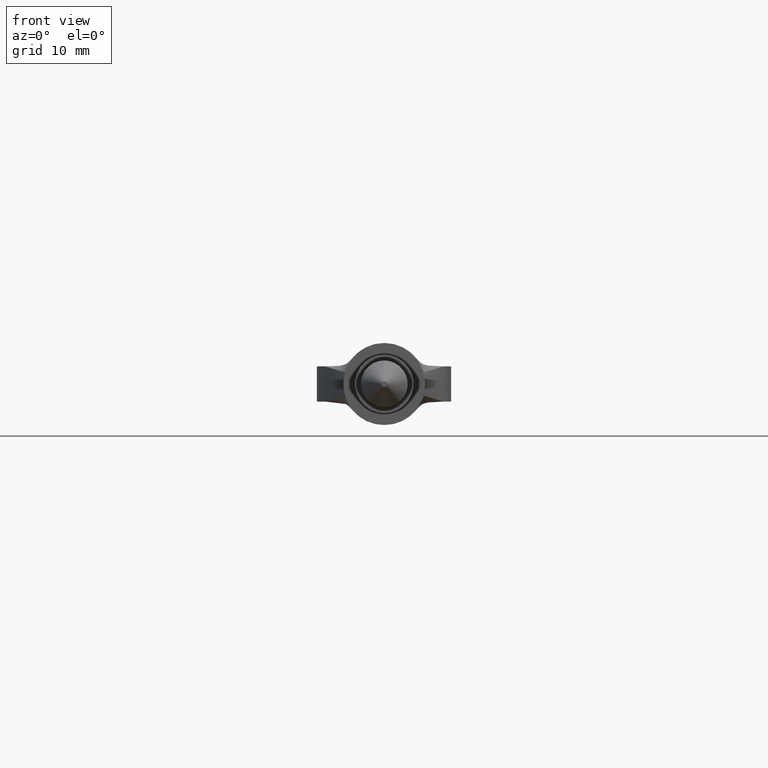
[diagram: clean part render]
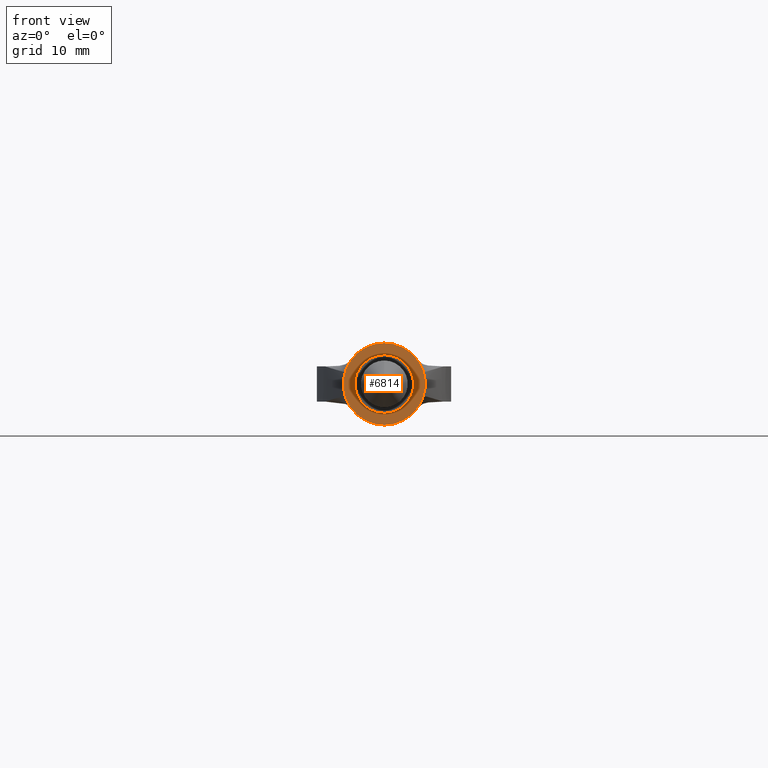
[diagram: same view with one face highlighted and labeled with its STEP entity id]
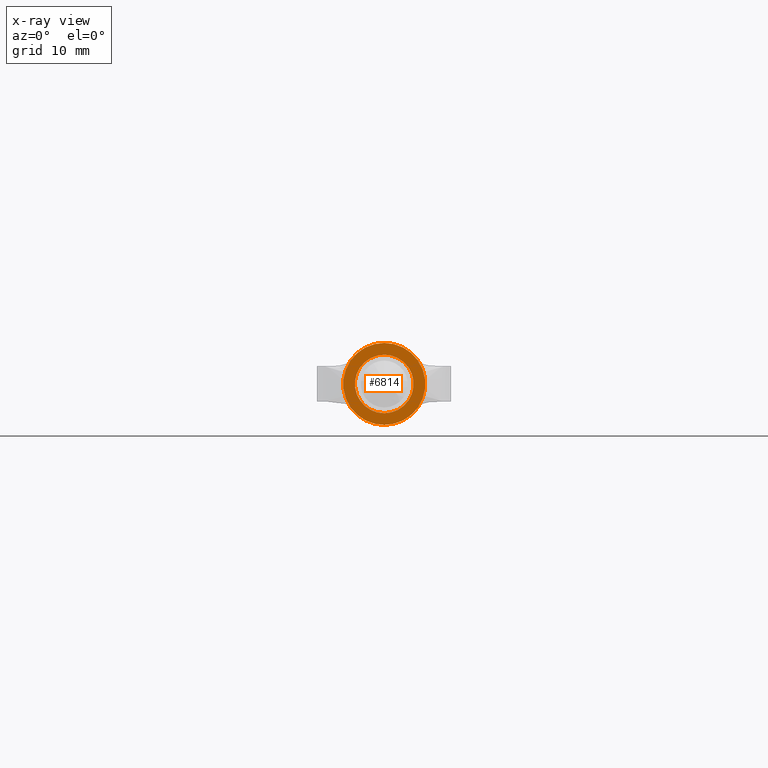
[diagram: x-ray of the same camera — body ghosted, the highlighted face saturated]
A machine part, front view. The second image highlights one B-rep face of the part: STEP entity #6814.
The next image is the same camera in x-ray: the body ghosted, the highlighted face saturated — about 0% of this face is hidden behind the body in this view.
In plain terms, the highlighted planar face has unit normal (0, 1, 0).
Its self-contained STEP definition (entity closure, byte-faithful):
#69 = CARTESIAN_POINT ( 'NONE',  ( 0.0000000000000000000, 39.50000000000000000, 0.0000000000000000000 ) ) ;
#333 = DIRECTION ( 'NONE',  ( 0.0000000000000000000, -0.0000000000000000000, 1.000000000000000000 ) ) ;
#396 = CIRCLE ( 'NONE', #3643, 3.500000000000000000 ) ;
#458 = EDGE_CURVE ( 'NONE', #7407, #5118, #3915, .T. ) ;
#879 = CARTESIAN_POINT ( 'NONE',  ( 0.0000000000000000000, 39.50000000000000000, 2.500000000000000000 ) ) ;
#1585 = AXIS2_PLACEMENT_3D ( 'NONE', #12111, #9944, #9754 ) ;
#1679 = ORIENTED_EDGE ( 'NONE', *, *, #458, .F. ) ;
#1902 = ORIENTED_EDGE ( 'NONE', *, *, #7504, .T. ) ;
#2883 = AXIS2_PLACEMENT_3D ( 'NONE', #13641, #5818, #333 ) ;
#3643 = AXIS2_PLACEMENT_3D ( 'NONE', #14372, #6648, #9986 ) ;
#3654 = CARTESIAN_POINT ( 'NONE',  ( 3.061616997868383100E-016, 39.50000000000000000, -2.500000000000000000 ) ) ;
#3915 = CIRCLE ( 'NONE', #4226, 3.500000000000000000 ) ;
#4226 = AXIS2_PLACEMENT_3D ( 'NONE', #14201, #7556, #8709 ) ;
#5118 = VERTEX_POINT ( 'NONE', #9779 ) ;
#5818 = DIRECTION ( 'NONE',  ( 0.0000000000000000000, 1.000000000000000000, 0.0000000000000000000 ) ) ;
#6648 = DIRECTION ( 'NONE',  ( 0.0000000000000000000, 1.000000000000000000, 0.0000000000000000000 ) ) ;
#6814 = ADVANCED_FACE ( 'NONE', ( #11900, #7883 ), #13540, .F. ) ;
#6851 = DIRECTION ( 'NONE',  ( 0.0000000000000000000, 1.000000000000000000, 0.0000000000000000000 ) ) ;
#7041 = VERTEX_POINT ( 'NONE', #879 ) ;
#7202 = ORIENTED_EDGE ( 'NONE', *, *, #10521, .F. ) ;
#7407 = VERTEX_POINT ( 'NONE', #10687 ) ;
#7504 = EDGE_CURVE ( 'NONE', #9901, #7041, #10966, .T. ) ;
#7556 = DIRECTION ( 'NONE',  ( 0.0000000000000000000, 1.000000000000000000, 0.0000000000000000000 ) ) ;
#7660 = EDGE_CURVE ( 'NONE', #7041, #9901, #13091, .T. ) ;
#7883 = FACE_OUTER_BOUND ( 'NONE', #13428, .T. ) ;
#8709 = DIRECTION ( 'NONE',  ( 0.0000000000000000000, 0.0000000000000000000, 1.000000000000000000 ) ) ;
#9754 = DIRECTION ( 'NONE',  ( 0.0000000000000000000, 0.0000000000000000000, 1.000000000000000000 ) ) ;
#9779 = CARTESIAN_POINT ( 'NONE',  ( 4.286263797015736600E-016, 39.50000000000000000, 3.500000000000000000 ) ) ;
#9901 = VERTEX_POINT ( 'NONE', #3654 ) ;
#9944 = DIRECTION ( 'NONE',  ( 0.0000000000000000000, 1.000000000000000000, 0.0000000000000000000 ) ) ;
#9986 = DIRECTION ( 'NONE',  ( 0.0000000000000000000, 0.0000000000000000000, 1.000000000000000000 ) ) ;
#10521 = EDGE_CURVE ( 'NONE', #5118, #7407, #396, .T. ) ;
#10687 = CARTESIAN_POINT ( 'NONE',  ( 0.0000000000000000000, 39.50000000000000000, -3.500000000000000000 ) ) ;
#10966 = CIRCLE ( 'NONE', #1585, 2.500000000000000000 ) ;
#11900 = FACE_BOUND ( 'NONE', #12605, .T. ) ;
#12111 = CARTESIAN_POINT ( 'NONE',  ( 0.0000000000000000000, 39.50000000000000000, 0.0000000000000000000 ) ) ;
#12605 = EDGE_LOOP ( 'NONE', ( #14274, #1902 ) ) ;
#13091 = CIRCLE ( 'NONE', #14015, 2.500000000000000000 ) ;
#13415 = DIRECTION ( 'NONE',  ( 0.0000000000000000000, 0.0000000000000000000, 1.000000000000000000 ) ) ;
#13428 = EDGE_LOOP ( 'NONE', ( #1679, #7202 ) ) ;
#13540 = PLANE ( 'NONE',  #2883 ) ;
#13641 = CARTESIAN_POINT ( 'NONE',  ( 0.0000000000000000000, 39.50000000000000000, 0.0000000000000000000 ) ) ;
#14015 = AXIS2_PLACEMENT_3D ( 'NONE', #69, #6851, #13415 ) ;
#14201 = CARTESIAN_POINT ( 'NONE',  ( 0.0000000000000000000, 39.50000000000000000, 0.0000000000000000000 ) ) ;
#14274 = ORIENTED_EDGE ( 'NONE', *, *, #7660, .T. ) ;
#14372 = CARTESIAN_POINT ( 'NONE',  ( 0.0000000000000000000, 39.50000000000000000, 0.0000000000000000000 ) ) ;